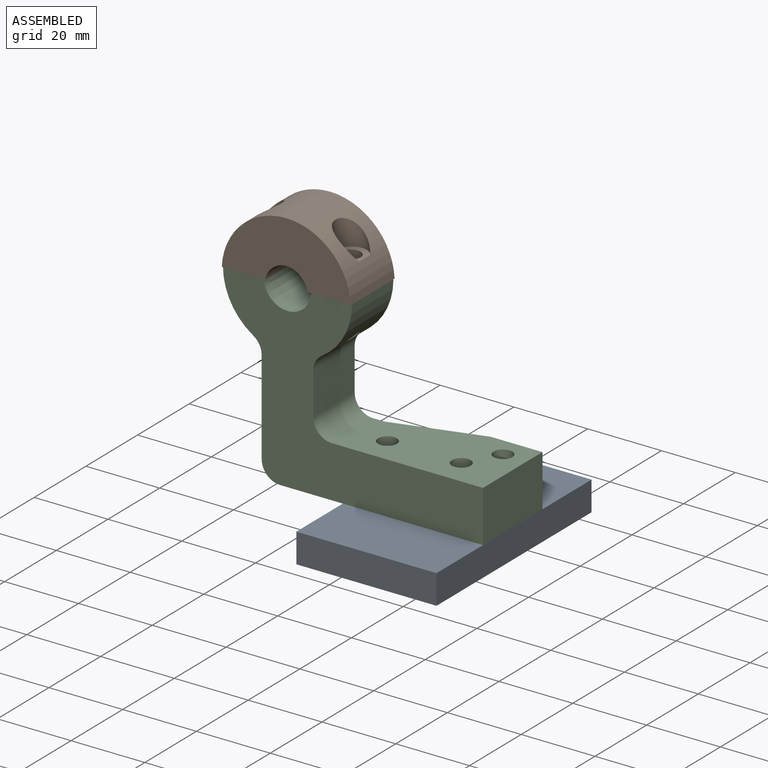
[diagram: assembled view]
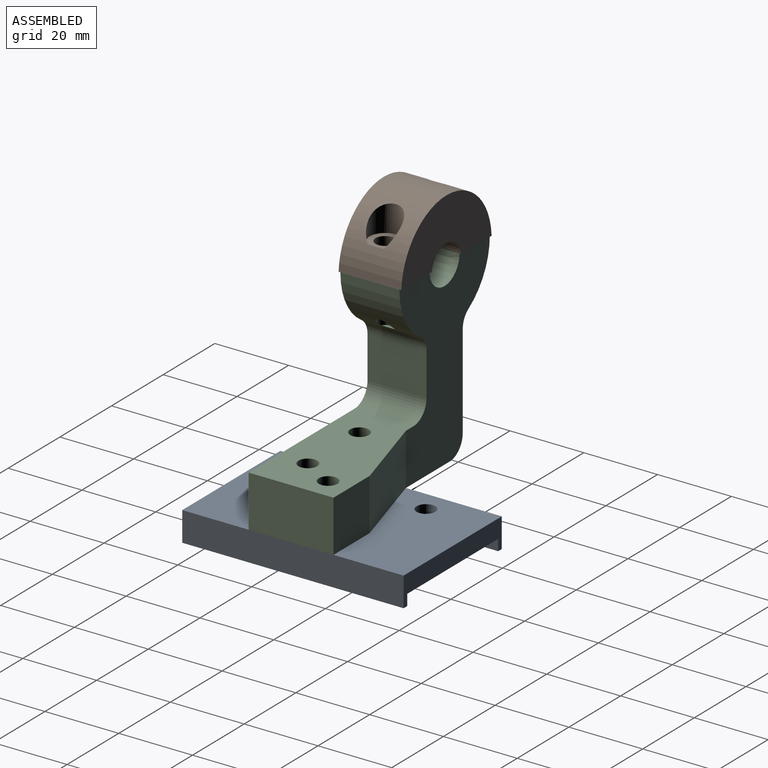
[diagram: assembled view, second angle]
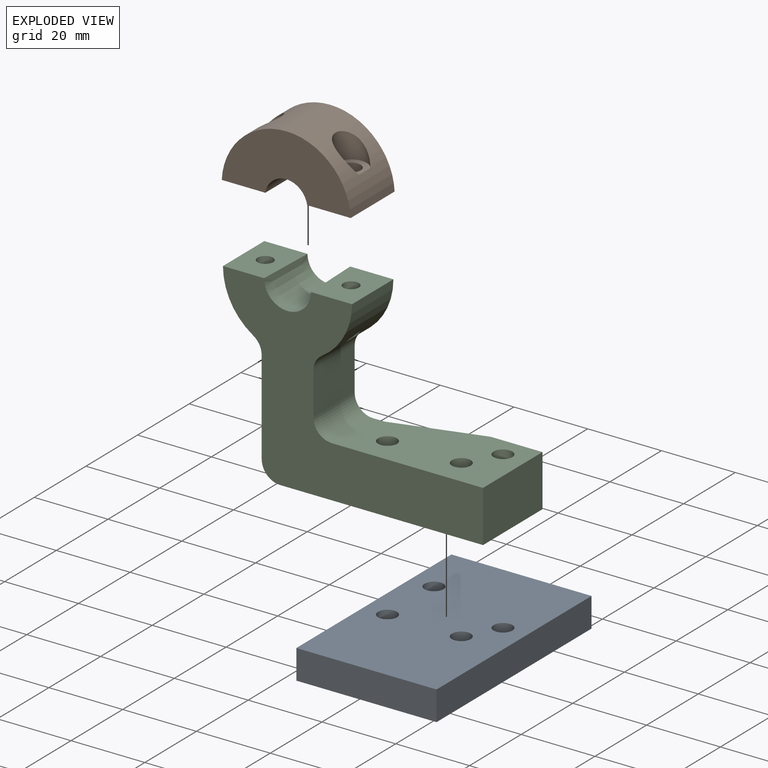
[diagram: exploded view]
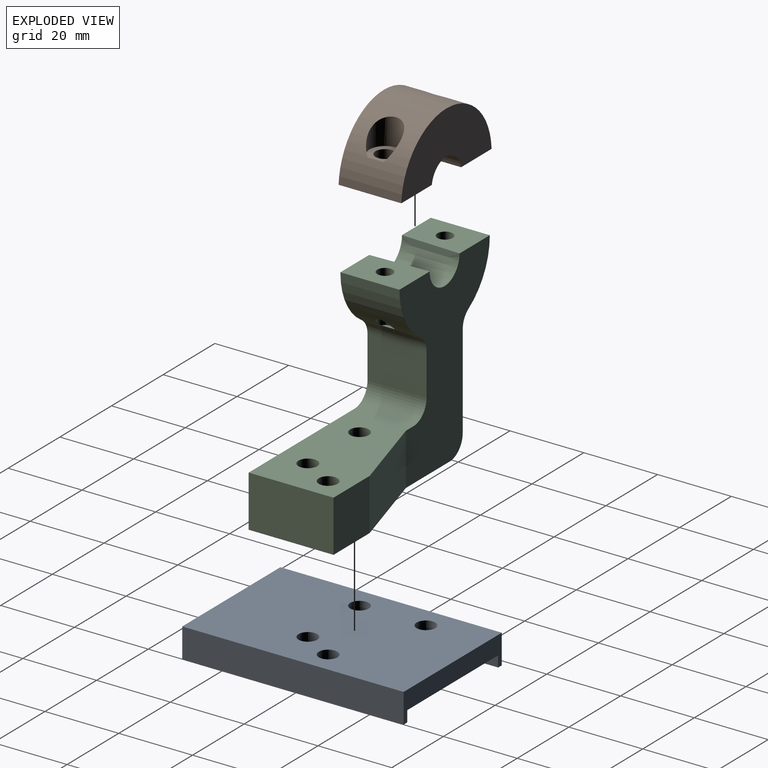
[diagram: exploded view, second angle]
ASSEMBLY  parts=3 mates=2
PART A: 14 faces, bbox 38x60x8 mm
  f0: plane 60x8mm, normal (-1,0,0), area 480mm2, adj f1,f3,f4,f13
  f1: plane 38x8mm, normal (0,-1,0), area 304mm2, adj f0,f2,f4,f13
  f2: plane 60x8mm, normal (1,0,0), area 480mm2, adj f1,f3,f4,f13
  f3: plane 38x8mm, normal (0,1,0), area 198.4mm2, adj f0,f2,f4,f5,f10,f12,f13
  f4: plane 60x38mm, normal (0,0,1), area 2198.3mm2, adj f0,f1,f2,f3,f6,f7,f8,f9
  f5: plane 58.6x35.2mm, normal (0,0,-1), area 1981mm2, adj f3,f6,f7,f8,f9,f10,f11,f12
  f6: cylinder r=2.55mm len=5.1mm, axis (0,0,1), area 80.1mm2, adj f4,f5
  f7: cylinder r=2.55mm len=5.1mm, axis (0,0,1), area 80.1mm2, adj f4,f5
  f8: cylinder r=2.55mm len=5.1mm, axis (0,0,1), area 80.1mm2, adj f4,f5
  f9: cylinder r=2.55mm len=5.1mm, axis (0,0,1), area 80.1mm2, adj f4,f5
  f10: plane 58.6x3mm, normal (1,0,0), area 175.8mm2, adj f3,f5,f11,f13
  f11: plane 35.2x3mm, normal (0,1,0), area 105.6mm2, adj f5,f10,f12,f13
  f12: plane 58.6x3mm, normal (-1,0,0), area 175.8mm2, adj f3,f5,f11,f13
  f13: plane 60x38mm, normal (0,0,-1), area 217.3mm2, adj f0,f1,f2,f3,f10,f11,f12
PART B: 12 faces, bbox 35x16.6x17 mm
  f0: cylinder r=2.6mm len=7.56mm, axis (0,1,0), area 123.6mm2, adj f4,f11
  f1: cylinder r=2.6mm len=7.56mm, axis (0,1,0), area 123.6mm2, adj f2,f9
  f2: plane 17x11.8mm, normal (0,1,0), area 179.3mm2, adj f1,f3,f5,f6,f7
  f3: cylinder r=17.5mm len=34.95mm, axis (0,0,-1), area 750.4mm2, adj f2,f4,f6,f7,f8,f9,f10,f11
  f4: plane 17x11.8mm, normal (0,1,0), area 179.3mm2, adj f0,f3,f5,f6,f7
  f5: cylinder r=5.75mm len=17mm, axis (0,0,-1), area 276.1mm2, adj f2,f4,f6,f7
  f6: plane 34.95x16.59mm, normal (0,0,1), area 407.7mm2, adj f2,f3,f4,f5
  f7: plane 34.95x16.59mm, normal (0,0,-1), area 407.7mm2, adj f2,f3,f4,f5
  f8: cylinder r=4.25mm len=8.5mm, axis (0,-1,0), area 107.6mm2, adj f3,f9
  f9: plane 8.5x7.94mm, normal (0,-1,0), area 33.9mm2, adj f1,f3,f8
  f10: cylinder r=4.25mm len=8.5mm, axis (0,-1,0), area 107.6mm2, adj f3,f11
  f11: plane 8.5x7.94mm, normal (0,-1,0), area 33.9mm2, adj f0,f3,f10
PART C: 25 faces, bbox 70.5x49.5x23 mm
  f0: plane 49.51x35mm, normal (0,0,1), area 998.1mm2, adj f1,f2,f3,f4,f6,f7,f8,f9
  f1: cylinder r=17.5mm len=16mm, axis (0,0,-1), area 266.6mm2, adj f0,f2,f10,f13,f19,f20
  f2: plane 16x11.71mm, normal (0,1,0), area 169.1mm2, adj f0,f1,f10,f19,f24
  f3: plane 16x11.48mm, normal (-1,0,0), area 183.6mm2, adj f0,f10,f13,f14
  f4: plane 41x23mm, normal (0,1,0), area 776.7mm2, adj f0,f5,f10,f11,f12,f14,f21,f22
  f5: plane 23x14mm, normal (-1,0,0), area 322mm2, adj f4,f6,f10,f21
  f6: plane 55x23mm, normal (0,-1,0), area 1000.7mm2, adj f0,f5,f10,f11,f12,f15,f21,f22
  f7: plane 25.48x16mm, normal (1,0,0), area 407.6mm2, adj f0,f10,f15,f16
  f8: cylinder r=17.5mm len=16mm, axis (0,0,-1), area 266.5mm2, adj f0,f9,f10,f16,f17,f18
  f9: plane 16x11.71mm, normal (0,1,0), area 169.1mm2, adj f0,f8,f10,f18,f24
  f10: plane 70.5x49.51mm, normal (0,0,-1), area 1519.3mm2, adj f1,f2,f3,f4,f5,f6,f7,f8
  f11: cylinder r=2.55mm len=14mm, axis (0,-1,0), area 224.3mm2, adj f4,f6
  f12: cylinder r=2.55mm len=14mm, axis (0,-1,0), area 224.3mm2, adj f4,f6
  f13: cylinder r=5mm len=16mm, axis (0,0,-1), area 80.7mm2, adj f0,f1,f3,f10
  f14: cylinder r=5mm len=16mm, axis (0,0,1), area 125.7mm2, adj f0,f3,f4,f10
  f15: cylinder r=5mm len=16mm, axis (0,0,-1), area 125.7mm2, adj f0,f6,f7,f10
  f16: cylinder r=5mm len=16mm, axis (0,0,-1), area 80.7mm2, adj f0,f7,f8,f10
  f17: plane 3.55x0.98mm, normal (0,1,0), area 2.4mm2, adj f8,f18
  f18: cylinder r=2.1mm len=14mm, axis (0,1,0), area 168.6mm2, adj f8,f9,f17
  f19: cylinder r=2.1mm len=14mm, axis (0,1,0), area 168.6mm2, adj f1,f2,f20
  f20: plane 3.55x0.98mm, normal (0,1,0), area 2.4mm2, adj f1,f19
  f21: plane 14x14mm, normal (0,0,1), area 196mm2, adj f4,f5,f6,f23
  f22: cylinder r=2.55mm len=14mm, axis (0,-1,0), area 224.3mm2, adj f4,f6
  f23: plane 24x14mm, normal (0.28,0,0.96), area 350mm2, adj f0,f4,f6,f21
  f24: cone r=6.35mm half-angle=2deg, axis (0,0,-1), area 305.2mm2, adj f0,f2,f9,f10
PLACE A t=(-34.9,-48.61,13.36)mm
PLACE B rot(axis=(0,-0.71,0.71),180deg) t=(-73.29,-14.11,83.44)mm
PLACE C rot(axis=(0,0.71,0.71),180deg) t=(3.1,-30.61,18.36)mm
MATE pin_slot B.f1 <-> C.f19  axis (0,0,-1) through (-38.27,-22.61,67.87)mm
MATE pin_slot A.f6 <-> C.f11  axis (0,0,1) through (-28.4,-22.61,18.36)mm
